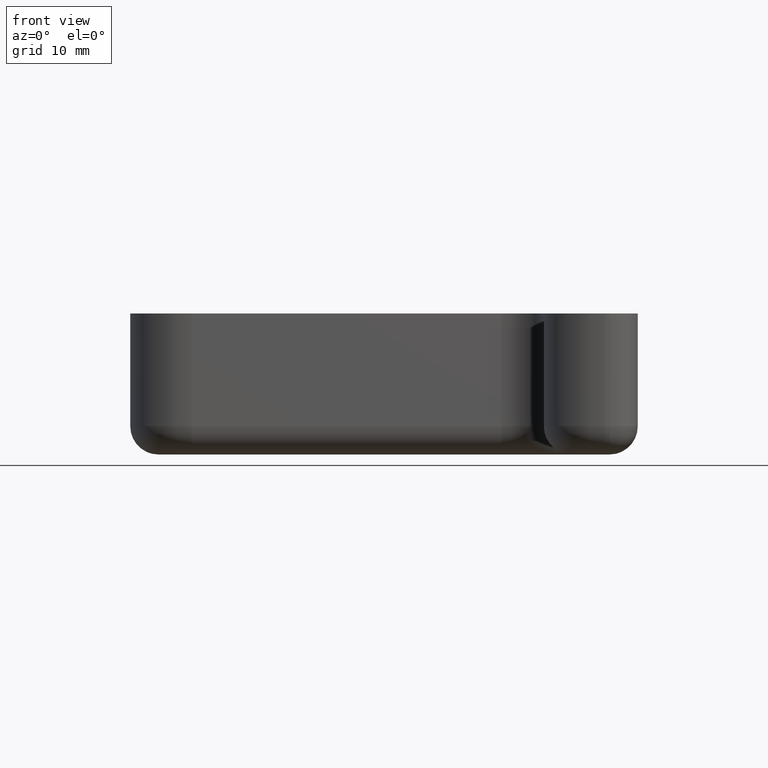
[diagram: clean part render]
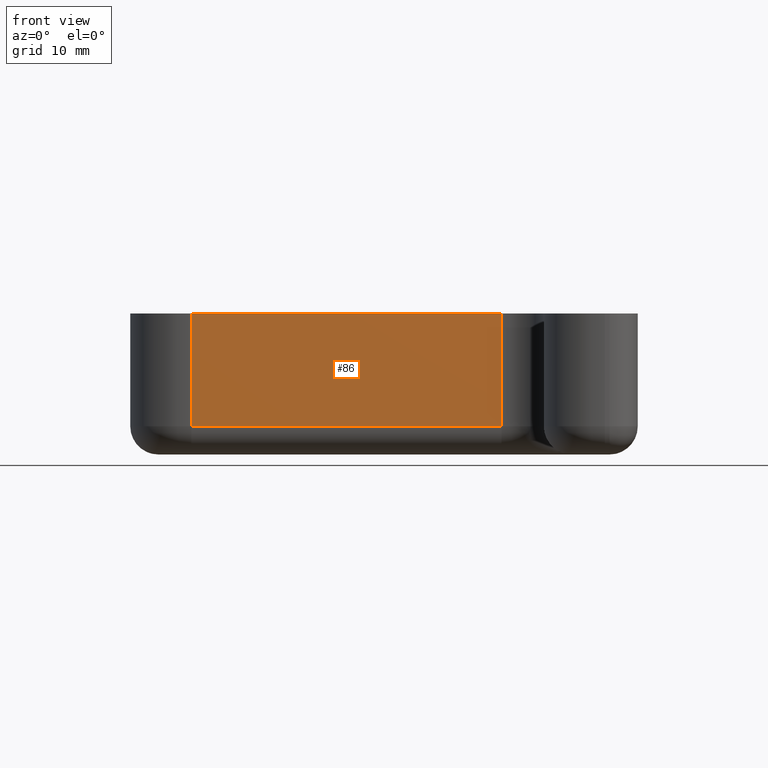
[diagram: same view with one face highlighted and labeled with its STEP entity id]
A machine part, front view. The second image highlights one B-rep face of the part: STEP entity #86.
In plain terms, the highlighted planar face has unit normal (-0, -1, 0).
Its self-contained STEP definition (entity closure, byte-faithful):
#86 = ADVANCED_FACE( '', ( #138 ), #139, .T. );
#138 = FACE_OUTER_BOUND( '', #217, .T. );
#139 = PLANE( '', #218 );
#217 = EDGE_LOOP( '', ( #378, #379, #380, #381 ) );
#218 = AXIS2_PLACEMENT_3D( '', #382, #383, #384 );
#378 = ORIENTED_EDGE( '', *, *, #629, .F. );
#379 = ORIENTED_EDGE( '', *, *, #630, .T. );
#380 = ORIENTED_EDGE( '', *, *, #631, .T. );
#381 = ORIENTED_EDGE( '', *, *, #583, .F. );
#382 = CARTESIAN_POINT( '', ( -45.5000000000000, -8.00000000000001, -15.0000000000000 ) );
#383 = DIRECTION( '', ( -1.22460635382238E-016, -1.00000000000000, 0.000000000000000 ) );
#384 = DIRECTION( '', ( -1.00000000000000, 1.22460635382238E-016, 0.000000000000000 ) );
#583 = EDGE_CURVE( '', #682, #684, #685, .T. );
#629 = EDGE_CURVE( '', #764, #682, #766, .T. );
#630 = EDGE_CURVE( '', #764, #767, #768, .T. );
#631 = EDGE_CURVE( '', #767, #684, #769, .T. );
#682 = VERTEX_POINT( '', #835 );
#684 = VERTEX_POINT( '', #837 );
#685 = LINE( '', #838, #839 );
#764 = VERTEX_POINT( '', #945 );
#766 = LINE( '', #947, #948 );
#767 = VERTEX_POINT( '', #949 );
#768 = LINE( '', #950, #951 );
#769 = LINE( '', #952, #953 );
#835 = CARTESIAN_POINT( '', ( -45.5000000000000, -8.00000000000001, 0.000000000000000 ) );
#837 = CARTESIAN_POINT( '', ( -12.5000000000000, -8.00000000000001, 0.000000000000000 ) );
#838 = CARTESIAN_POINT( '', ( -45.5000000000000, -8.00000000000001, 0.000000000000000 ) );
#839 = VECTOR( '', #1038, 1000.00000000000 );
#945 = CARTESIAN_POINT( '', ( -45.5000000000000, -8.00000000000001, -12.0000000000000 ) );
#947 = CARTESIAN_POINT( '', ( -45.5000000000000, -8.00000000000001, -15.0000000000000 ) );
#948 = VECTOR( '', #1120, 1000.00000000000 );
#949 = CARTESIAN_POINT( '', ( -12.5000000000000, -8.00000000000001, -12.0000000000000 ) );
#950 = CARTESIAN_POINT( '', ( -12.5000000000000, -8.00000000000001, -12.0000000000000 ) );
#951 = VECTOR( '', #1121, 1000.00000000000 );
#952 = CARTESIAN_POINT( '', ( -12.5000000000000, -8.00000000000001, -15.0000000000000 ) );
#953 = VECTOR( '', #1122, 1000.00000000000 );
#1038 = DIRECTION( '', ( 1.00000000000000, -1.22460635382238E-016, 0.000000000000000 ) );
#1120 = DIRECTION( '', ( 0.000000000000000, 0.000000000000000, 1.00000000000000 ) );
#1121 = DIRECTION( '', ( 1.00000000000000, -1.22460635382238E-016, 0.000000000000000 ) );
#1122 = DIRECTION( '', ( 0.000000000000000, 0.000000000000000, 1.00000000000000 ) );